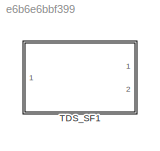
MODEL slx_e6b6e6bbf399
KIND model
CONFIG AbsTol = auto
CONFIG EnableMultiTasking = off
CONFIG FixedStep = auto
CONFIG MaxStep = auto
CONFIG MinStep = auto
CONFIG RelTol = 1e-3
CONFIG SampleTimeConstraint = Unconstrained
CONFIG Solver = VariableStepAuto
CONFIG SolverName = VariableStepAuto
CONFIG StartTime = 0.0
CONFIG StopTime = 1440
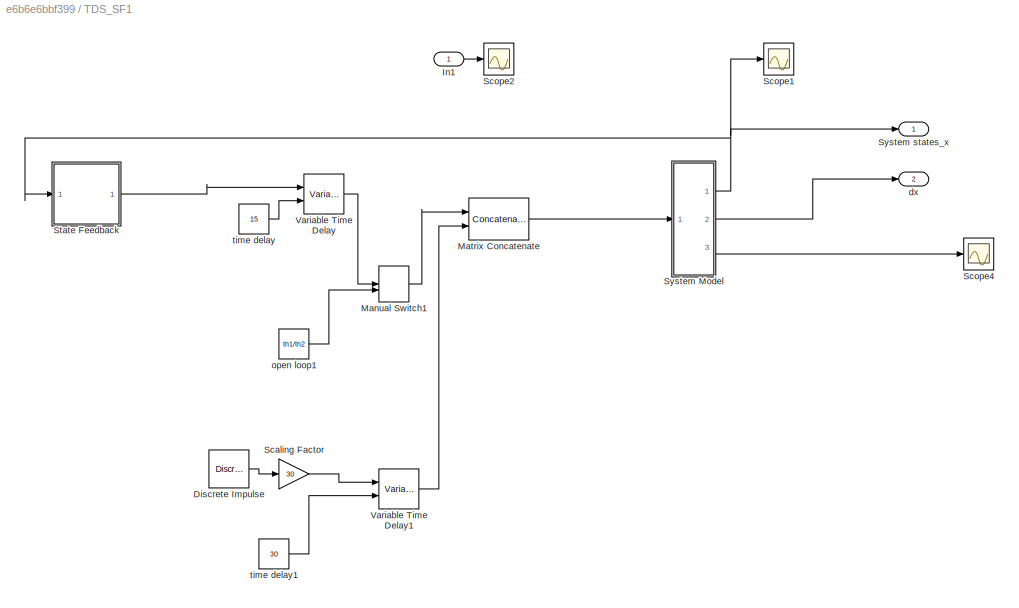
BLOCK [SubSystem] TDS_SF1
  Ports = [1, 2]
  RequestExecContextInheritance = off
BLOCK [Reference] TDS_SF1/Discrete Impulse  REF=dspsrcs4/Discrete 
Impulse
  Ports = [0, 1]
  SourceBlock = dspsrcs4/Discrete \nImpulse
  SourceProductBaseCode = DS
  SourceProductName = DSP System Toolbox
  SourceType = Discrete Impulse
BLOCK [Inport] TDS_SF1/In1
  IconDisplay = Port number
BLOCK [ManualSwitch] TDS_SF1/Manual Switch1
BLOCK [Concatenate] TDS_SF1/Matrix Concatenate
  ConcatenateDimension = 2
  Ports = [2, 1]
BLOCK [Gain] TDS_SF1/Scaling Factor
  Gain = 30
  OutDataTypeStr = Inherit: Inherit via internal rule
  ParamDataTypeStr = Inherit: Inherit via internal rule
  SaturateOnIntegerOverflow = off
BLOCK [Scope] TDS_SF1/Scope1
  Floating = off
  NumInputPorts = 1
  Ports = [1]
  ScopeSpecificationString = Simulink.scopes.TimeScopeBlockCfg('CurrentConfiguration', extmgr.ConfigurationSet(extmgr.Configuration('Core','General UI',true),extmgr.Configuration('Core','Source UI',true),extmgr.Configuration('Sources','WiredSimulink',true,'DataLoggingVariableName','ScopeData3'),extmgr.Configuration('Visuals','Time Domain',true,'SerializedDisplays',{struct('MinYLimReal','-16.21696','MaxYLimReal','145.95261','Y...<+1561ch>
BLOCK [Scope] TDS_SF1/Scope2
  Floating = off
  NumInputPorts = 1
  Ports = [1]
  ScopeSpecificationString = Simulink.scopes.TimeScopeBlockCfg('CurrentConfiguration', extmgr.ConfigurationSet(extmgr.Configuration('Core','General UI',true),extmgr.Configuration('Core','Source UI',true),extmgr.Configuration('Sources','WiredSimulink',true,'DataLoggingVariableName','ScopeData4'),extmgr.Configuration('Visuals','Time Domain',true,'SerializedDisplays',{struct('MinYLimReal','-0.05207','MaxYLimReal','0.09304','YLab...<+1468ch>
BLOCK [Scope] TDS_SF1/Scope4
  Floating = off
  NumInputPorts = 1
  Ports = [1]
  ScopeSpecificationString = Simulink.scopes.TimeScopeBlockCfg('CurrentConfiguration', extmgr.ConfigurationSet(extmgr.Configuration('Core','General UI',true,'FigureColor',[0.501960784313725 0.501960784313725 0.501960784313725]),extmgr.Configuration('Core','Source UI',true),extmgr.Configuration('Sources','WiredSimulink',true,'DataLoggingVariableName','ScopeData6'),extmgr.Configuration('Visuals','Time Domain',true,'SerializedDi...<+1819ch>
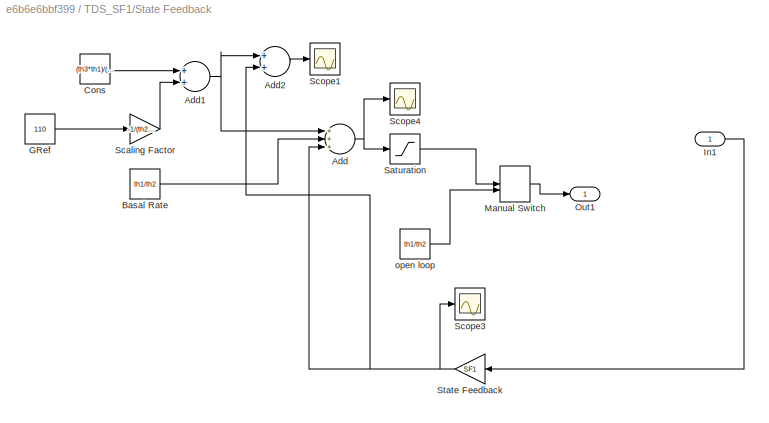
BLOCK [SubSystem] TDS_SF1/State Feedback 
  Ports = [1, 1]
  RequestExecContextInheritance = off
BLOCK [Sum] TDS_SF1/State Feedback /Add
  InputSameDT = off
  Inputs = +++
  OutDataTypeStr = Inherit: Inherit via internal rule
  Ports = [3, 1]
  SaturateOnIntegerOverflow = off
BLOCK [Sum] TDS_SF1/State Feedback /Add1
  InputSameDT = off
  OutDataTypeStr = Inherit: Inherit via internal rule
  Ports = [2, 1]
  SaturateOnIntegerOverflow = off
BLOCK [Sum] TDS_SF1/State Feedback /Add2
  InputSameDT = off
  OutDataTypeStr = Inherit: Inherit via internal rule
  Ports = [2, 1]
  SaturateOnIntegerOverflow = off
BLOCK [Constant] TDS_SF1/State Feedback /Basal Rate
  Value = th1/th2
  VectorParams1D = off
BLOCK [Constant] TDS_SF1/State Feedback /Cons
  Value = (th3*th1)/(th2*47.88)
  VectorParams1D = off
BLOCK [Constant] TDS_SF1/State Feedback /GRef
  Value = 110
BLOCK [Inport] TDS_SF1/State Feedback /In1
  IconDisplay = Port number
BLOCK [ManualSwitch] TDS_SF1/State Feedback /Manual Switch
BLOCK [Outport] TDS_SF1/State Feedback /Out1
  IconDisplay = Port number
BLOCK [Saturate] TDS_SF1/State Feedback /Saturation
  InputPortMap = u0
  LowerLimit = 0
  Ports = [1, 1]
  UpperLimit = 2
BLOCK [Gain] TDS_SF1/State Feedback /Scaling Factor
  Gain = -1/(th2*47.88)
  OutDataTypeStr = Inherit: Inherit via internal rule
  ParamDataTypeStr = Inherit: Inherit via internal rule
  SaturateOnIntegerOverflow = off
BLOCK [Scope] TDS_SF1/State Feedback /Scope1
  Floating = off
  NumInputPorts = 1
  Ports = [1]
  ScopeSpecificationString = Simulink.scopes.TimeScopeBlockCfg('CurrentConfiguration', extmgr.ConfigurationSet(extmgr.Configuration('Core','General UI',true),extmgr.Configuration('Core','Source UI',true),extmgr.Configuration('Sources','WiredSimulink',true,'DataLoggingVariableName','ScopeData1'),extmgr.Configuration('Visuals','Time Domain',true,'SerializedDisplays',{struct('MinYLimReal','-0.00778','MaxYLimReal','0.07001','YLab...<+1484ch>
BLOCK [Scope] TDS_SF1/State Feedback /Scope3
  Floating = off
  NumInputPorts = 1
  Ports = [1]
  ScopeSpecificationString = Simulink.scopes.TimeScopeBlockCfg('CurrentConfiguration', extmgr.ConfigurationSet(extmgr.Configuration('Core','General UI',true),extmgr.Configuration('Core','Source UI',true),extmgr.Configuration('Sources','WiredSimulink',true,'DataLoggingVariableName','ScopeData1'),extmgr.Configuration('Visuals','Time Domain',true,'SerializedDisplays',{struct('MinYLimReal','0.02464494569757725','MaxYLimReal','0.0...<+1582ch>
BLOCK [Scope] TDS_SF1/State Feedback /Scope4
  Floating = off
  NumInputPorts = 1
  Ports = [1]
  ScopeSpecificationString = Simulink.scopes.TimeScopeBlockCfg('CurrentConfiguration', extmgr.ConfigurationSet(extmgr.Configuration('Core','General UI',true),extmgr.Configuration('Core','Source UI',true),extmgr.Configuration('Sources','WiredSimulink',true,'DataLoggingVariableName','ScopeData2'),extmgr.Configuration('Visuals','Time Domain',true,'SerializedDisplays',{struct('MinYLimReal','0.00922','MaxYLimReal','0.08701','YLabe...<+1431ch>
BLOCK [Gain] TDS_SF1/State Feedback /State Feedback
  Gain = SF1
  Multiplication = Matrix(K*u)
  OutDataTypeStr = Inherit: Inherit via internal rule
  ParamDataTypeStr = Inherit: Inherit via internal rule
  SaturateOnIntegerOverflow = off
BLOCK [Constant] TDS_SF1/State Feedback /open loop
  Value = th1/th2
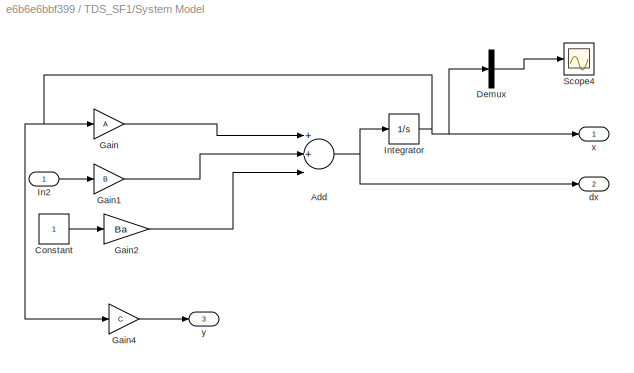
BLOCK [SubSystem] TDS_SF1/System Model
  Ports = [1, 3]
  RequestExecContextInheritance = off
BLOCK [Sum] TDS_SF1/System Model/Add
  InputSameDT = off
  Inputs = 3
  OutDataTypeStr = Inherit: Inherit via internal rule
  Ports = [3, 1]
  SaturateOnIntegerOverflow = off
BLOCK [Constant] TDS_SF1/System Model/Constant
BLOCK [Demux] TDS_SF1/System Model/Demux
  DisplayOption = bar
  Outputs = 3
  Ports = [1, 3]
BLOCK [Gain] TDS_SF1/System Model/Gain
  Gain = A
  Multiplication = Matrix(K*u)
  OutDataTypeStr = Inherit: Inherit via internal rule
  ParamDataTypeStr = Inherit: Inherit via internal rule
  SaturateOnIntegerOverflow = off
BLOCK [Gain] TDS_SF1/System Model/Gain1
  Gain = B
  Multiplication = Matrix(K*u)
  OutDataTypeStr = Inherit: Inherit via internal rule
  ParamDataTypeStr = Inherit: Inherit via internal rule
  SaturateOnIntegerOverflow = off
BLOCK [Gain] TDS_SF1/System Model/Gain2
  Gain = Ba
  Multiplication = Matrix(K*u)
  OutDataTypeStr = Inherit: Inherit via internal rule
  ParamDataTypeStr = Inherit: Inherit via internal rule
  SaturateOnIntegerOverflow = off
BLOCK [Gain] TDS_SF1/System Model/Gain4
  Gain = C
  Multiplication = Matrix(K*u)
  OutDataTypeStr = Inherit: Inherit via internal rule
  ParamDataTypeStr = Inherit: Inherit via internal rule
  SaturateOnIntegerOverflow = off
BLOCK [Inport] TDS_SF1/System Model/In2
  IconDisplay = Port number
BLOCK [Integrator] TDS_SF1/System Model/Integrator
  InitialCondition = [110; th1/th2; 0]
  Ports = [1, 1]
  ZeroCross = off
BLOCK [Scope] TDS_SF1/System Model/Scope4
  Floating = off
  NumInputPorts = 1
  Ports = [1]
  ScopeSpecificationString = Simulink.scopes.TimeScopeBlockCfg('CurrentConfiguration', extmgr.ConfigurationSet(extmgr.Configuration('Core','General UI',true,'FigureColor',[0.501960784313725 0.501960784313725 0.501960784313725]),extmgr.Configuration('Core','Source UI',true),extmgr.Configuration('Sources','WiredSimulink',true,'DataLoggingVariableName','ScopeData4'),extmgr.Configuration('Visuals','Time Domain',true,'SerializedDi...<+1821ch>
BLOCK [Outport] TDS_SF1/System Model/dx
  IconDisplay = Port number
  Port = 2
BLOCK [Outport] TDS_SF1/System Model/x
  IconDisplay = Port number
BLOCK [Outport] TDS_SF1/System Model/y
  IconDisplay = Port number
  Port = 3
BLOCK [Outport] TDS_SF1/System states_x
  IconDisplay = Port number
BLOCK [VariableTransportDelay] TDS_SF1/Variable Time Delay
  InitialOutput = th1/th2
  MaximumDelay = 20
  Ports = [2, 1]
BLOCK [VariableTransportDelay] TDS_SF1/Variable Time Delay1
  InitialOutput = 0.00000000000001
  MaximumDelay = 40
  Ports = [2, 1]
BLOCK [Outport] TDS_SF1/dx
  IconDisplay = Port number
  Port = 2
BLOCK [Constant] TDS_SF1/open loop1
  Value = th1/th2
BLOCK [Constant] TDS_SF1/time delay
  Value = 15
  VectorParams1D = off
BLOCK [Constant] TDS_SF1/time delay1
  Value = 30
  VectorParams1D = off
LINE TDS_SF1/Discrete Impulse:1 -> TDS_SF1/Scaling Factor:1
LINE TDS_SF1/In1:1 -> TDS_SF1/Scope2:1
LINE TDS_SF1/Manual Switch1:1 -> TDS_SF1/Matrix Concatenate:1
LINE TDS_SF1/Matrix Concatenate:1 -> TDS_SF1/System Model:1
LINE TDS_SF1/Scaling Factor:1 -> TDS_SF1/Variable Time Delay1:1
NET TDS_SF1/State Feedback /Add1:1 -> TDS_SF1/State Feedback /Add2:1, TDS_SF1/State Feedback /Add:1
LINE TDS_SF1/State Feedback /Add2:1 -> TDS_SF1/State Feedback /Scope1:1
NET TDS_SF1/State Feedback /Add:1 -> TDS_SF1/State Feedback /Saturation:1, TDS_SF1/State Feedback /Scope4:1
LINE TDS_SF1/State Feedback /Basal Rate:1 -> TDS_SF1/State Feedback /Add:2
LINE TDS_SF1/State Feedback /Cons:1 -> TDS_SF1/State Feedback /Add1:1
LINE TDS_SF1/State Feedback /GRef:1 -> TDS_SF1/State Feedback /Scaling Factor:1
LINE TDS_SF1/State Feedback /In1:1 -> TDS_SF1/State Feedback /State Feedback:1
LINE TDS_SF1/State Feedback /Manual Switch:1 -> TDS_SF1/State Feedback /Out1:1
LINE TDS_SF1/State Feedback /Saturation:1 -> TDS_SF1/State Feedback /Manual Switch:1
LINE TDS_SF1/State Feedback /Scaling Factor:1 -> TDS_SF1/State Feedback /Add1:2
NET TDS_SF1/State Feedback /State Feedback:1 -> TDS_SF1/State Feedback /Add2:2, TDS_SF1/State Feedback /Add:3, TDS_SF1/State Feedback /Scope3:1
LINE TDS_SF1/State Feedback /open loop:1 -> TDS_SF1/State Feedback /Manual Switch:2
LINE TDS_SF1/State Feedback :1 -> TDS_SF1/Variable Time Delay:1
NET TDS_SF1/System Model/Add:1 -> TDS_SF1/System Model/Integrator:1, TDS_SF1/System Model/dx:1
LINE TDS_SF1/System Model/Constant:1 -> TDS_SF1/System Model/Gain2:1
LINE TDS_SF1/System Model/Demux:2 -> TDS_SF1/System Model/Scope4:1
LINE TDS_SF1/System Model/Gain1:1 -> TDS_SF1/System Model/Add:2
LINE TDS_SF1/System Model/Gain2:1 -> TDS_SF1/System Model/Add:3
LINE TDS_SF1/System Model/Gain4:1 -> TDS_SF1/System Model/y:1
LINE TDS_SF1/System Model/Gain:1 -> TDS_SF1/System Model/Add:1
LINE TDS_SF1/System Model/In2:1 -> TDS_SF1/System Model/Gain1:1
NET TDS_SF1/System Model/Integrator:1 -> TDS_SF1/System Model/Demux:1, TDS_SF1/System Model/Gain4:1, TDS_SF1/System Model/Gain:1, TDS_SF1/System Model/x:1
NET TDS_SF1/System Model:1 -> TDS_SF1/Scope1:1, TDS_SF1/State Feedback :1, TDS_SF1/System states_x:1
LINE TDS_SF1/System Model:2 -> TDS_SF1/dx:1
LINE TDS_SF1/System Model:3 -> TDS_SF1/Scope4:1
LINE TDS_SF1/Variable Time Delay1:1 -> TDS_SF1/Matrix Concatenate:2
LINE TDS_SF1/Variable Time Delay:1 -> TDS_SF1/Manual Switch1:1
LINE TDS_SF1/open loop1:1 -> TDS_SF1/Manual Switch1:2
LINE TDS_SF1/time delay1:1 -> TDS_SF1/Variable Time Delay1:2
LINE TDS_SF1/time delay:1 -> TDS_SF1/Variable Time Delay:2
note: NET lines group one-source signal fan-out (src -> all destinations, sorted); 1:1 wires keep LINE
